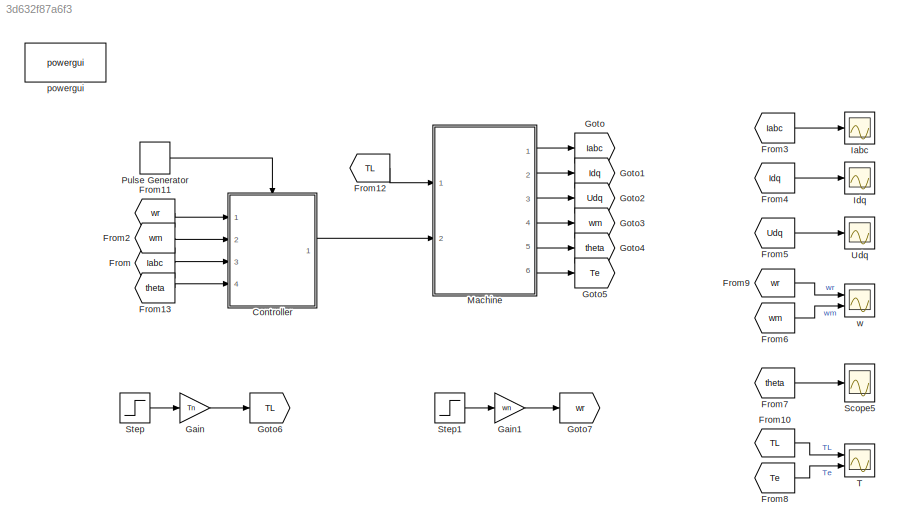
MODEL slx_3d632f87a6f3
KIND model
CONFIG AbsTol = auto
CONFIG EnableMultiTasking = off
CONFIG FixedStep = auto
CONFIG MaxStep = 1e-6
CONFIG MinStep = auto
CONFIG RelTol = 1e-3
CONFIG SampleTimeConstraint = Unconstrained
CONFIG SolverName = ode45
CONFIG StartTime = 0.0
CONFIG StopTime = 1
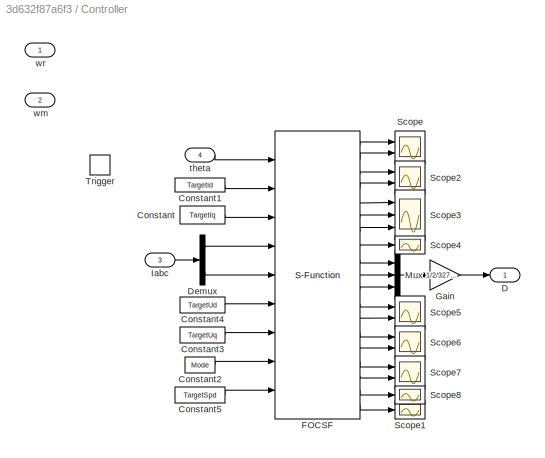
BLOCK [SubSystem] Controller
  Ports = [4, 1, 0, 1]
  RequestExecContextInheritance = off
  TreatAsAtomicUnit = on
BLOCK [Constant] Controller/Constant
  Value = TargetIq
BLOCK [Constant] Controller/Constant1
  Value = TargetId
BLOCK [Constant] Controller/Constant2
  Value = Mode
BLOCK [Constant] Controller/Constant3
  Value = TargetUq
BLOCK [Constant] Controller/Constant4
  Value = TargetUd
BLOCK [Constant] Controller/Constant5
  Value = TargetSpd
BLOCK [Outport] Controller/D
  VectorParamsAs1DForOutWhenUnconnected = off
BLOCK [Demux] Controller/Demux
  Outputs = 3
  Ports = [1, 3]
BLOCK [S-Function] Controller/FOCSF
  EnableBusSupport = off
  FunctionName = FOCSF
  Parameters = Np CurKp CurKi VolMax SpdKp SpdKi CurMax Alpha
  Ports = [9, 19]
  SFcnIsStateOwnerBlock = off
  SFunctionDeploymentMode = off
BLOCK [Gain] Controller/Gain
  Gain = 1/2/32768
BLOCK [Inport] Controller/Iabc
  Port = 3
BLOCK [Mux] Controller/Mux
  DisplayOption = bar
  Inputs = 3
  Ports = [3, 1]
BLOCK [Scope] Controller/Scope
  Floating = off
  NumInputPorts = 2
  Ports = [2]
  ScopeSpecificationString = Simulink.scopes.TimeScopeBlockCfg('CurrentConfiguration', extmgr.ConfigurationSet(extmgr.Configuration('Core','General UI',true),extmgr.Configuration('Core','Source UI',true),extmgr.Configuration('Sources','WiredSimulink',true,'DataLoggingVariableName','ScopeData1'),extmgr.Configuration('Visuals','Time Domain',true,'SerializedDisplays',{struct('MinYLimReal','-40958.75','MaxYLimReal','40958.75','YL...<+1503ch>
BLOCK [Scope] Controller/Scope1
  Floating = off
  NumInputPorts = 1
  Ports = [1]
  ScopeSpecificationString = Simulink.scopes.TimeScopeBlockCfg('CurrentConfiguration', extmgr.ConfigurationSet(extmgr.Configuration('Core','General UI',true),extmgr.Configuration('Core','Source UI',true),extmgr.Configuration('Sources','WiredSimulink',true,'DataLoggingVariableName','ScopeData1'),extmgr.Configuration('Visuals','Time Domain',true,'SerializedDisplays',{struct('MinYLimReal','-36412880.00000','MaxYLimReal','2894910...<+1527ch>
BLOCK [Scope] Controller/Scope2
  Floating = off
  NumInputPorts = 2
  Ports = [2]
  ScopeSpecificationString = Simulink.scopes.TimeScopeBlockCfg('CurrentConfiguration', extmgr.ConfigurationSet(extmgr.Configuration('Core','General UI',true),extmgr.Configuration('Core','Source UI',true),extmgr.Configuration('Sources','WiredSimulink',true,'DataLoggingVariableName','ScopeData2'),extmgr.Configuration('Visuals','Time Domain',true,'SerializedDisplays',{struct('MinYLimReal','-40958.75','MaxYLimReal','40958.75','YL...<+1505ch>
BLOCK [Scope] Controller/Scope3
  Floating = off
  NumInputPorts = 3
  Ports = [3]
  ScopeSpecificationString = Simulink.scopes.TimeScopeBlockCfg('CurrentConfiguration', extmgr.ConfigurationSet(extmgr.Configuration('Core','General UI',true),extmgr.Configuration('Core','Source UI',true),extmgr.Configuration('Sources','WiredSimulink',true,'DataLoggingVariableName','ScopeData3'),extmgr.Configuration('Visuals','Time Domain',true,'SerializedDisplays',{struct('MinYLimReal','-22941.875','MaxYLimReal','22936.875','...<+1511ch>
BLOCK [Scope] Controller/Scope4
  Floating = off
  NumInputPorts = 1
  Ports = [1]
  ScopeSpecificationString = Simulink.scopes.TimeScopeBlockCfg('CurrentConfiguration', extmgr.ConfigurationSet(extmgr.Configuration('Core','General UI',true),extmgr.Configuration('Core','Source UI',true),extmgr.Configuration('Sources','WiredSimulink',true,'DataLoggingVariableName','ScopeData4'),extmgr.Configuration('Visuals','Time Domain',true,'SerializedDisplays',{struct('MinYLimReal','0.375','MaxYLimReal','6.625','YLabelRea...<+1353ch>
BLOCK [Scope] Controller/Scope5
  Floating = off
  NumInputPorts = 2
  Ports = [2]
  ScopeSpecificationString = Simulink.scopes.TimeScopeBlockCfg('CurrentConfiguration', extmgr.ConfigurationSet(extmgr.Configuration('Core','General UI',true),extmgr.Configuration('Core','Source UI',true),extmgr.Configuration('Sources','WiredSimulink',true,'DataLoggingVariableName','ScopeData5'),extmgr.Configuration('Visuals','Time Domain',true,'SerializedDisplays',{struct('MinYLimReal','-86.375','MaxYLimReal','727.375','YLabe...<+1493ch>
BLOCK [Scope] Controller/Scope6
  Floating = off
  NumInputPorts = 2
  Ports = [2]
  ScopeSpecificationString = Simulink.scopes.TimeScopeBlockCfg('CurrentConfiguration', extmgr.ConfigurationSet(extmgr.Configuration('Core','General UI',true),extmgr.Configuration('Core','Source UI',true),extmgr.Configuration('Sources','WiredSimulink',true,'DataLoggingVariableName','ScopeData6'),extmgr.Configuration('Visuals','Time Domain',true,'SerializedDisplays',{struct('MinYLimReal','-394.25','MaxYLimReal','558.25','YLabel...<+1481ch>
BLOCK [Scope] Controller/Scope7
  Floating = off
  NumInputPorts = 2
  Ports = [2]
  ScopeSpecificationString = Simulink.scopes.TimeScopeBlockCfg('CurrentConfiguration', extmgr.ConfigurationSet(extmgr.Configuration('Core','General UI',true),extmgr.Configuration('Core','Source UI',true),extmgr.Configuration('Sources','WiredSimulink',true,'DataLoggingVariableName','ScopeData7'),extmgr.Configuration('Visuals','Time Domain',true,'SerializedDisplays',{struct('MinYLimReal','-3479.625','MaxYLimReal','21346.625','Y...<+1507ch>
BLOCK [Scope] Controller/Scope8
  Floating = off
  NumInputPorts = 1
  Ports = [1]
  ScopeSpecificationString = Simulink.scopes.TimeScopeBlockCfg('CurrentConfiguration', extmgr.ConfigurationSet(extmgr.Configuration('Core','General UI',true),extmgr.Configuration('Core','Source UI',true),extmgr.Configuration('Sources','WiredSimulink',true,'DataLoggingVariableName','ScopeData8'),extmgr.Configuration('Visuals','Time Domain',true,'SerializedDisplays',{struct('MinYLimReal','-76.375','MaxYLimReal','687.375','YLabe...<+1492ch>
BLOCK [TriggerPort] Controller/Trigger
  Ports = []
  StatesWhenEnabling = held
  VariantControl = Variant
BLOCK [Inport] Controller/theta
  Port = 4
BLOCK [Inport] Controller/wm
  Port = 2
BLOCK [Inport] Controller/wr
BLOCK [From] From
  GotoTag = Iabc
BLOCK [From] From10
  GotoTag = TL
  TagVisibility = global
BLOCK [From] From11
  GotoTag = wr
  TagVisibility = global
BLOCK [From] From12
  GotoTag = TL
  TagVisibility = global
BLOCK [From] From13
  GotoTag = theta
BLOCK [From] From2
  GotoTag = wm
BLOCK [From] From3
  GotoTag = Iabc
BLOCK [From] From4
  GotoTag = Idq
BLOCK [From] From5
  GotoTag = Udq
BLOCK [From] From6
  GotoTag = wm
BLOCK [From] From7
  GotoTag = theta
BLOCK [From] From8
  GotoTag = Te
BLOCK [From] From9
  GotoTag = wr
  TagVisibility = global
BLOCK [Gain] Gain
  Gain = Tn
BLOCK [Gain] Gain1
  Gain = wn
BLOCK [Goto] Goto
  GotoTag = Iabc
BLOCK [Goto] Goto1
  GotoTag = Idq
BLOCK [Goto] Goto2
  GotoTag = Udq
BLOCK [Goto] Goto3
  GotoTag = wm
BLOCK [Goto] Goto4
  GotoTag = theta
BLOCK [Goto] Goto5
  GotoTag = Te
BLOCK [Goto] Goto6
  GotoTag = TL
  TagVisibility = global
BLOCK [Goto] Goto7
  GotoTag = wr
  TagVisibility = global
BLOCK [Scope] Iabc
  Floating = off
  NumInputPorts = 1
  Ports = [1]
  ScopeSpecificationString = Simulink.scopes.TimeScopeBlockCfg('CurrentConfiguration', extmgr.ConfigurationSet(extmgr.Configuration('Core','General UI',true),extmgr.Configuration('Core','Source UI',true),extmgr.Configuration('Sources','WiredSimulink',true),extmgr.Configuration('Visuals','Time Domain',true,'SerializedDisplays',{struct('MinYLimReal','-1.54988','MaxYLimReal','1.39392','YLabelReal','','MinYLimMag','0.00000','MaxY...<+1459ch>
BLOCK [Scope] Idq
  Floating = off
  NumInputPorts = 1
  Ports = [1]
  ScopeSpecificationString = Simulink.scopes.TimeScopeBlockCfg('CurrentConfiguration', extmgr.ConfigurationSet(extmgr.Configuration('Core','General UI',true),extmgr.Configuration('Core','Source UI',true),extmgr.Configuration('Sources','WiredSimulink',true,'DataLoggingVariableName','ScopeData1'),extmgr.Configuration('Visuals','Time Domain',true,'SerializedDisplays',{struct('MinYLimReal','-0.03243','MaxYLimReal','0.02372','YLab...<+1519ch>
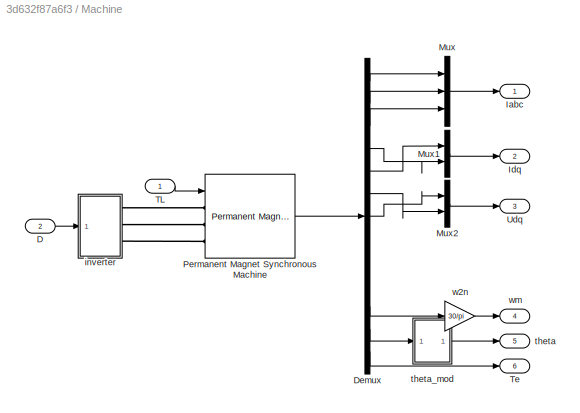
BLOCK [SubSystem] Machine
  Ports = [2, 6]
  RequestExecContextInheritance = off
BLOCK [Inport] Machine/D
  Port = 2
BLOCK [Demux] Machine/Demux
  Outputs = 13
  Ports = [1, 13]
BLOCK [Outport] Machine/Iabc
  VectorParamsAs1DForOutWhenUnconnected = off
BLOCK [Outport] Machine/Idq
  Port = 2
  VectorParamsAs1DForOutWhenUnconnected = off
BLOCK [Mux] Machine/Mux
  DisplayOption = bar
  Inputs = 3
  Ports = [3, 1]
BLOCK [Mux] Machine/Mux1
  DisplayOption = bar
  Inputs = 2
  Ports = [2, 1]
BLOCK [Mux] Machine/Mux2
  DisplayOption = bar
  Inputs = 2
  Ports = [2, 1]
BLOCK [Reference] Machine/Permanent Magnet Synchronous Machine  REF=powerlib/Machines/Permanent Magnet
Synchronous Machine
  Ports = [1, 1, 0, 0, 0, 3]
  SourceBlock = powerlib/Machines/Permanent Magnet\nSynchronous Machine
  SourceProductBaseCode = PS
  SourceType = Permanent Magnet Synchronous Machine
BLOCK [Inport] Machine/TL
BLOCK [Outport] Machine/Te
  Port = 6
  VectorParamsAs1DForOutWhenUnconnected = off
BLOCK [Outport] Machine/Udq
  Port = 3
  VectorParamsAs1DForOutWhenUnconnected = off
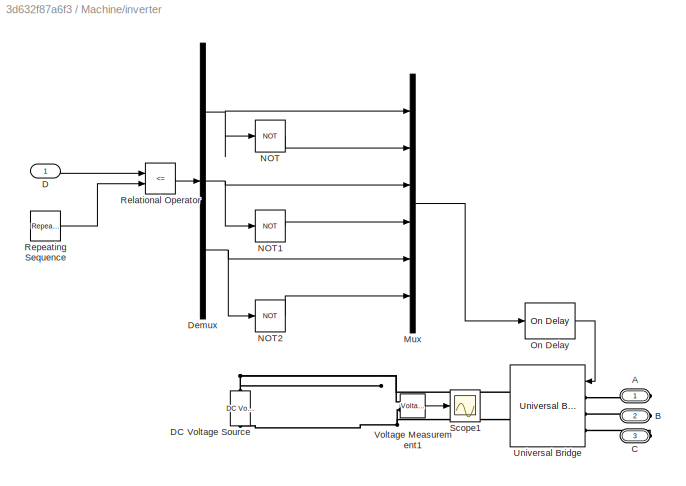
BLOCK [SubSystem] Machine/inverter
  Ports = [1, 0, 0, 0, 0, 0, 3]
  RequestExecContextInheritance = off
BLOCK [PMIOPort] Machine/inverter/A
  Side = Right
BLOCK [PMIOPort] Machine/inverter/B
  Port = 2
  Side = Right
BLOCK [PMIOPort] Machine/inverter/C
  Port = 3
  Side = Right
BLOCK [Inport] Machine/inverter/D
BLOCK [Reference] Machine/inverter/DC Voltage Source  REF=powerlib/Electrical
Sources/DC Voltage Source
  NameLocation = right
  Ports = [0, 0, 0, 0, 0, 1, 1]
  SourceBlock = powerlib/Electrical\nSources/DC Voltage Source
  SourceProductBaseCode = PS
  SourceType = DC Voltage Source
BLOCK [Demux] Machine/inverter/Demux
  Outputs = 3
  Ports = [1, 3]
BLOCK [Mux] Machine/inverter/Mux
  DisplayOption = bar
  Inputs = 6
  Ports = [6, 1]
BLOCK [Logic] Machine/inverter/NOT
  AllPortsSameDT = off
  IconShape = distinctive
  Operator = NOT
  OutDataTypeStr = boolean
  Ports = [1, 1]
BLOCK [Logic] Machine/inverter/NOT1
  AllPortsSameDT = off
  IconShape = distinctive
  Operator = NOT
  OutDataTypeStr = boolean
  Ports = [1, 1]
BLOCK [Logic] Machine/inverter/NOT2
  AllPortsSameDT = off
  IconShape = distinctive
  Operator = NOT
  OutDataTypeStr = boolean
  Ports = [1, 1]
BLOCK [Reference] Machine/inverter/On Delay  REF=powerlib_meascontrol/Logic/On Delay
  Ports = [1, 1]
  SourceBlock = powerlib_meascontrol/Logic/On Delay
  SourceProductBaseCode = PS
  SourceType = On/Off Delay
BLOCK [RelationalOperator] Machine/inverter/Relational Operator
  InputSameDT = off
  Operator = <=
  OutDataTypeStr = boolean
  Ports = [2, 1]
  RndMeth = Simplest
BLOCK [Reference] Machine/inverter/Repeating Sequence  REF=simulink/Sources/Repeating
Sequence
  Ports = [0, 1]
  SourceBlock = simulink/Sources/Repeating\nSequence
  SourceProductBaseCode = SL
  SourceType = Repeating table
BLOCK [Scope] Machine/inverter/Scope1
  Floating = off
  NumInputPorts = 1
  Ports = [1]
  ScopeSpecificationString = Simulink.scopes.TimeScopeBlockCfg('CurrentConfiguration', extmgr.ConfigurationSet(extmgr.Configuration('Core','General UI',true),extmgr.Configuration('Core','Source UI',true),extmgr.Configuration('Sources','WiredSimulink',true,'DataLoggingVariableName','ScopeData1'),extmgr.Configuration('Visuals','Time Domain',true,'SerializedDisplays',{struct('MinYLimReal','-31.67772','MaxYLimReal','601.21776','Y...<+1489ch>
BLOCK [Reference] Machine/inverter/Universal Bridge  REF=powerlib/Power
Electronics/Universal Bridge
  Ports = [1, 0, 0, 0, 0, 3, 2]
  SourceBlock = powerlib/Power\nElectronics/Universal Bridge
  SourceProductBaseCode = PS
  SourceType = Universal Bridge
BLOCK [Reference] Machine/inverter/Voltage Measurement1  REF=powerlib/Measurements/Voltage Measurement
  Ports = [0, 1, 0, 0, 0, 2]
  SourceBlock = powerlib/Measurements/Voltage Measurement
  SourceProductBaseCode = PS
  SourceType = Voltage Measurement
  UserDataPersistent = on
BLOCK [Outport] Machine/theta
  Port = 5
  VectorParamsAs1DForOutWhenUnconnected = off
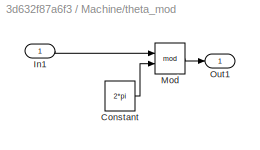
BLOCK [SubSystem] Machine/theta_mod
  Ports = [1, 1]
  RequestExecContextInheritance = off
BLOCK [Constant] Machine/theta_mod/Constant
  Value = 2*pi
BLOCK [Inport] Machine/theta_mod/In1
BLOCK [Math] Machine/theta_mod/Mod
  Operator = mod
  Ports = [2, 1]
  SignedPower = on
BLOCK [Outport] Machine/theta_mod/Out1
  VectorParamsAs1DForOutWhenUnconnected = off
BLOCK [Gain] Machine/w2n
  Gain = 30/pi
BLOCK [Outport] Machine/wm
  Port = 4
  VectorParamsAs1DForOutWhenUnconnected = off
BLOCK [DiscretePulseGenerator] Pulse Generator
  Period = CurTs
  Ports = [0, 1]
  PulseType = Time based
  PulseWidth = 50
BLOCK [Scope] Scope5
  Floating = off
  NumInputPorts = 1
  Ports = [1]
  ScopeSpecificationString = Simulink.scopes.TimeScopeBlockCfg('CurrentConfiguration', extmgr.ConfigurationSet(extmgr.Configuration('Core','General UI',true),extmgr.Configuration('Core','Source UI',true),extmgr.Configuration('Sources','WiredSimulink',true,'DataLoggingVariableName','ScopeData6'),extmgr.Configuration('Visuals','Time Domain',true,'SerializedDisplays',{struct('MinYLimReal','-0.7854','MaxYLimReal','7.06858','YLabe...<+1496ch>
BLOCK [Step] Step
  SampleTime = 0
  Time = 0.1
BLOCK [Step] Step1
  SampleTime = 0
  Time = 0
BLOCK [Scope] T
  Floating = off
  NumInputPorts = 2
  Ports = [2]
  ScopeSpecificationString = Simulink.scopes.TimeScopeBlockCfg('CurrentConfiguration', extmgr.ConfigurationSet(extmgr.Configuration('Core','General UI',true),extmgr.Configuration('Core','Source UI',true),extmgr.Configuration('Sources','WiredSimulink',true,'DataLoggingVariableName','ScopeData5'),extmgr.Configuration('Visuals','Time Domain',true,'SerializedDisplays',{struct('MinYLimReal','-17.09595','MaxYLimReal','15.58491','YL...<+1568ch>
BLOCK [Scope] Udq
  Floating = off
  NumInputPorts = 1
  Ports = [1]
  ScopeSpecificationString = Simulink.scopes.TimeScopeBlockCfg('CurrentConfiguration', extmgr.ConfigurationSet(extmgr.Configuration('Core','General UI',true),extmgr.Configuration('Core','Source UI',true),extmgr.Configuration('Sources','WiredSimulink',true,'DataLoggingVariableName','ScopeData2'),extmgr.Configuration('Visuals','Time Domain',true,'SerializedDisplays',{struct('MinYLimReal','-415.6232','MaxYLimReal','419.10198','Y...<+1530ch>
BLOCK [Reference] powergui  REF=powerlib/powergui
  Ports = []
  Priority = 1
  SourceBlock = powerlib/powergui
  SourceProductBaseCode = PS
  SourceType = PSB option menu block
BLOCK [Scope] w
  Floating = off
  NumInputPorts = 2
  Ports = [2]
  ScopeSpecificationString = Simulink.scopes.TimeScopeBlockCfg('CurrentConfiguration', extmgr.ConfigurationSet(extmgr.Configuration('Core','General UI',true),extmgr.Configuration('Core','Source UI',true),extmgr.Configuration('Sources','WiredSimulink',true,'DataLoggingVariableName','ScopeData3'),extmgr.Configuration('Visuals','Time Domain',true,'SerializedDisplays',{struct('MinYLimReal','-4628.96564','MaxYLimReal','3685.27408'...<+1582ch>
LINE Controller/Constant1:1 -> Controller/FOCSF:2
LINE Controller/Constant2:1 -> Controller/FOCSF:8
LINE Controller/Constant3:1 -> Controller/FOCSF:7
LINE Controller/Constant4:1 -> Controller/FOCSF:6
LINE Controller/Constant5:1 -> Controller/FOCSF:9
LINE Controller/Constant:1 -> Controller/FOCSF:3
LINE Controller/Demux:1 -> Controller/FOCSF:4
LINE Controller/Demux:3 -> Controller/FOCSF:5
LINE Controller/FOCSF:1 -> Controller/Scope:1
LINE Controller/FOCSF:10 -> Controller/Mux:2
LINE Controller/FOCSF:11 -> Controller/Mux:3
LINE Controller/FOCSF:12 -> Controller/Scope5:1
LINE Controller/FOCSF:13 -> Controller/Scope5:2
LINE Controller/FOCSF:14 -> Controller/Scope6:1
LINE Controller/FOCSF:15 -> Controller/Scope6:2
LINE Controller/FOCSF:16 -> Controller/Scope7:1
LINE Controller/FOCSF:17 -> Controller/Scope7:2
LINE Controller/FOCSF:18 -> Controller/Scope8:1
LINE Controller/FOCSF:19 -> Controller/Scope1:1
LINE Controller/FOCSF:2 -> Controller/Scope:2
LINE Controller/FOCSF:3 -> Controller/Scope2:1
LINE Controller/FOCSF:4 -> Controller/Scope2:2
LINE Controller/FOCSF:5 -> Controller/Scope3:1
LINE Controller/FOCSF:6 -> Controller/Scope3:2
LINE Controller/FOCSF:7 -> Controller/Scope3:3
LINE Controller/FOCSF:8 -> Controller/Scope4:1
LINE Controller/FOCSF:9 -> Controller/Mux:1
LINE Controller/Gain:1 -> Controller/D:1
LINE Controller/Iabc:1 -> Controller/Demux:1
LINE Controller/Mux:1 -> Controller/Gain:1
LINE Controller/theta:1 -> Controller/FOCSF:1
LINE Controller:1 -> Machine:2
LINE From10:1 -> T:1
LINE From11:1 -> Controller:1
LINE From12:1 -> Machine:1
LINE From13:1 -> Controller:4
LINE From2:1 -> Controller:2
LINE From3:1 -> Iabc:1
LINE From4:1 -> Idq:1
LINE From5:1 -> Udq:1
LINE From6:1 -> w:2
LINE From7:1 -> Scope5:1
LINE From8:1 -> T:2
LINE From9:1 -> w:1
LINE From:1 -> Controller:3
LINE Gain1:1 -> Goto7:1
LINE Gain:1 -> Goto6:1
LINE Machine/D:1 -> Machine/inverter:1
LINE Machine/Demux:1 -> Machine/Mux:1
LINE Machine/Demux:11 -> Machine/w2n:1
LINE Machine/Demux:12 -> Machine/theta_mod:1
LINE Machine/Demux:13 -> Machine/Te:1
LINE Machine/Demux:2 -> Machine/Mux:2
LINE Machine/Demux:3 -> Machine/Mux:3
LINE Machine/Demux:4 -> Machine/Mux1:2
LINE Machine/Demux:5 -> Machine/Mux1:1
LINE Machine/Demux:6 -> Machine/Mux2:2
LINE Machine/Demux:7 -> Machine/Mux2:1
LINE Machine/Mux1:1 -> Machine/Idq:1
LINE Machine/Mux2:1 -> Machine/Udq:1
LINE Machine/Mux:1 -> Machine/Iabc:1
LINE Machine/Permanent Magnet Synchronous Machine:1 -> Machine/Demux:1
LINE Machine/TL:1 -> Machine/Permanent Magnet Synchronous Machine:1
LINE Machine/inverter/D:1 -> Machine/inverter/Relational Operator:1
NET Machine/inverter/Demux:1 -> Machine/inverter/Mux:1, Machine/inverter/NOT:1
NET Machine/inverter/Demux:2 -> Machine/inverter/Mux:3, Machine/inverter/NOT1:1
NET Machine/inverter/Demux:3 -> Machine/inverter/Mux:5, Machine/inverter/NOT2:1
LINE Machine/inverter/Mux:1 -> Machine/inverter/On Delay:1
LINE Machine/inverter/NOT1:1 -> Machine/inverter/Mux:4
LINE Machine/inverter/NOT2:1 -> Machine/inverter/Mux:6
LINE Machine/inverter/NOT:1 -> Machine/inverter/Mux:2
LINE Machine/inverter/On Delay:1 -> Machine/inverter/Universal Bridge:1
LINE Machine/inverter/Relational Operator:1 -> Machine/inverter/Demux:1
LINE Machine/inverter/Repeating Sequence:1 -> Machine/inverter/Relational Operator:2
LINE Machine/inverter/Voltage Measurement1:1 -> Machine/inverter/Scope1:1
LINE Machine/theta_mod/Constant:1 -> Machine/theta_mod/Mod:2
LINE Machine/theta_mod/In1:1 -> Machine/theta_mod/Mod:1
LINE Machine/theta_mod/Mod:1 -> Machine/theta_mod/Out1:1
LINE Machine/theta_mod:1 -> Machine/theta:1
LINE Machine/w2n:1 -> Machine/wm:1
LINE Machine:1 -> Goto:1
LINE Machine:2 -> Goto1:1
LINE Machine:3 -> Goto2:1
LINE Machine:4 -> Goto3:1
LINE Machine:5 -> Goto4:1
LINE Machine:6 -> Goto5:1
LINE Pulse Generator:1 -> Controller:trigger
LINE Step1:1 -> Gain1:1
LINE Step:1 -> Gain:1
PLINE Machine/Permanent Magnet Synchronous Machine:LConn1 -- Machine/inverter:RConn1
PLINE Machine/Permanent Magnet Synchronous Machine:LConn2 -- Machine/inverter:RConn2
PLINE Machine/Permanent Magnet Synchronous Machine:LConn3 -- Machine/inverter:RConn3
PLINE Machine/inverter/A:RConn1 -- Machine/inverter/Universal Bridge:LConn1
PLINE Machine/inverter/B:RConn1 -- Machine/inverter/Universal Bridge:LConn2
PLINE Machine/inverter/C:RConn1 -- Machine/inverter/Universal Bridge:LConn3
PNET net1: Machine/inverter/DC Voltage Source:LConn1 -- Machine/inverter/Universal Bridge:RConn2 -- Machine/inverter/Voltage Measurement1:LConn2
PNET net2: Machine/inverter/DC Voltage Source:RConn1 -- Machine/inverter/Universal Bridge:RConn1 -- Machine/inverter/Voltage Measurement1:LConn1
note: NET lines group one-source signal fan-out (src -> all destinations, sorted); 1:1 wires keep LINE; PNET lines group multi-terminal physical nets as a canonical sorted terminal list (undirected conserving connections); 2-terminal nets keep the pairwise PLINE form
